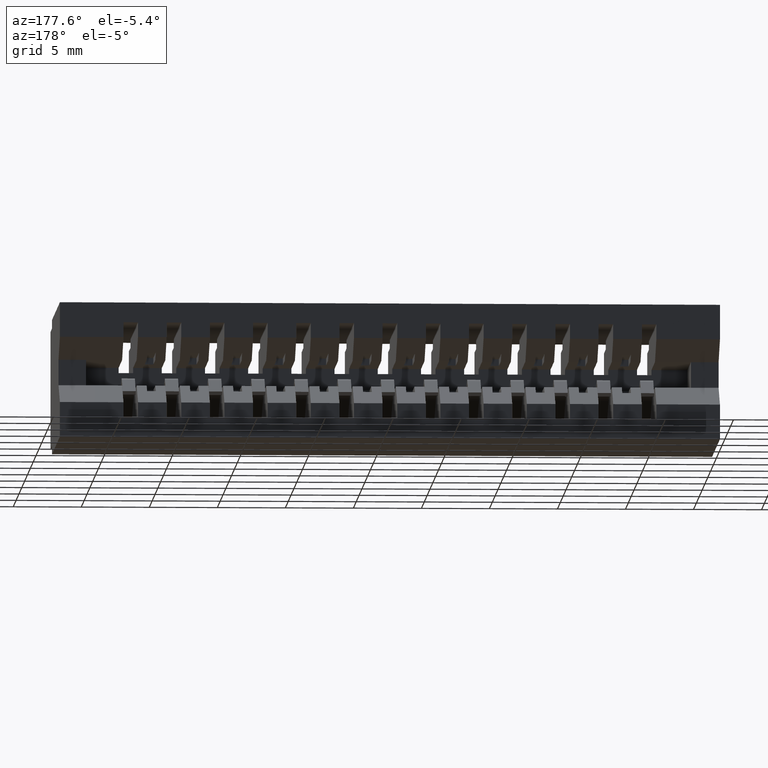
[diagram: clean part render]
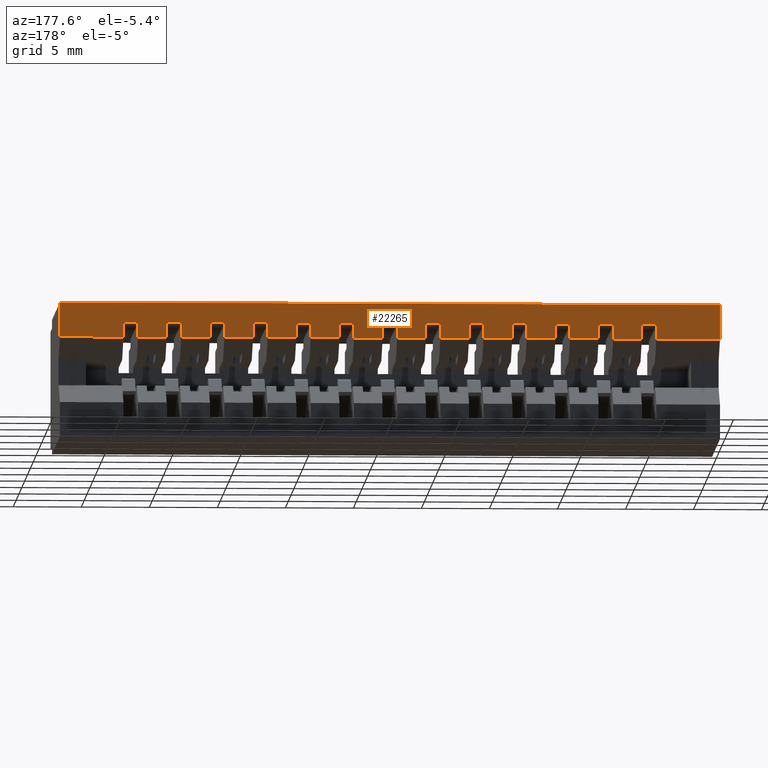
[diagram: same view with one face highlighted and labeled with its STEP entity id]
A machine part, auxiliary view. The second image highlights one B-rep face of the part: STEP entity #22265.
In plain terms, the highlighted planar face has unit normal (0, -1, 0).
Its self-contained STEP definition (entity closure, byte-faithful):
#42 = EDGE_CURVE ( 'NONE', #17692, #766, #1530, .T. ) ;
#119 = EDGE_CURVE ( 'NONE', #4855, #153, #20437, .T. ) ;
#147 = CARTESIAN_POINT ( 'NONE',  ( 0.4759999999999997011, 0.6449999999999999067, -0.1002500000000000058 ) ) ;
#153 = VERTEX_POINT ( 'NONE', #14549 ) ;
#154 = VECTOR ( 'NONE', #18979, 39.37007874015748143 ) ;
#273 = VECTOR ( 'NONE', #20626, 39.37007874015748143 ) ;
#358 = CARTESIAN_POINT ( 'NONE',  ( 1.225999999999999757, 0.6449999999999999067, -0.05750000000000000944 ) ) ;
#390 = VERTEX_POINT ( 'NONE', #15723 ) ;
#410 = DIRECTION ( 'NONE',  ( 2.385081683068867604E-16, 0.0000000000000000000, 1.000000000000000000 ) ) ;
#532 = ORIENTED_EDGE ( 'NONE', *, *, #119, .T. ) ;
#565 = CARTESIAN_POINT ( 'NONE',  ( 1.350999999999999979, 0.6449999999999999067, -5.373951300518784932E-17 ) ) ;
#578 = EDGE_CURVE ( 'NONE', #19260, #7707, #11381, .T. ) ;
#581 = CARTESIAN_POINT ( 'NONE',  ( 1.183999999999999719, 0.6449999999999999067, -0.1002500000000000474 ) ) ;
#665 = VECTOR ( 'NONE', #19133, 39.37007874015748143 ) ;
#676 = VERTEX_POINT ( 'NONE', #20646 ) ;
#704 = CARTESIAN_POINT ( 'NONE',  ( 1.475999999999999757, 0.6449999999999999067, -0.05750000000000000944 ) ) ;
#733 = LINE ( 'NONE', #2511, #665 ) ;
#752 = DIRECTION ( 'NONE',  ( 2.385081683068867604E-16, 0.0000000000000000000, 1.000000000000000000 ) ) ;
#766 = VERTEX_POINT ( 'NONE', #8719 ) ;
#773 = VECTOR ( 'NONE', #4719, 39.37007874015748143 ) ;
#774 = ORIENTED_EDGE ( 'NONE', *, *, #6073, .F. ) ;
#954 = VERTEX_POINT ( 'NONE', #5076 ) ;
#1006 = ORIENTED_EDGE ( 'NONE', *, *, #23655, .F. ) ;
#1024 = ORIENTED_EDGE ( 'NONE', *, *, #1375, .T. ) ;
#1062 = CARTESIAN_POINT ( 'NONE',  ( 0.8509999999999997566, 0.6449999999999999067, -0.05750000000000000944 ) ) ;
#1106 = ORIENTED_EDGE ( 'NONE', *, *, #3270, .T. ) ;
#1155 = CARTESIAN_POINT ( 'NONE',  ( 1.308999999999999941, 0.6449999999999999067, -0.1002499999999999780 ) ) ;
#1226 = ORIENTED_EDGE ( 'NONE', *, *, #18616, .F. ) ;
#1275 = CARTESIAN_POINT ( 'NONE',  ( 1.909999999999999920, 0.6449999999999999067, -0.1002500000000000058 ) ) ;
#1309 = DIRECTION ( 'NONE',  ( 2.385081683068867604E-16, 0.0000000000000000000, 1.000000000000000000 ) ) ;
#1350 = DIRECTION ( 'NONE',  ( 2.385081683068867604E-16, 0.0000000000000000000, 1.000000000000000000 ) ) ;
#1375 = EDGE_CURVE ( 'NONE', #19567, #13268, #9706, .T. ) ;
#1399 = CARTESIAN_POINT ( 'NONE',  ( 0.9759999999999996456, 0.6449999999999999067, -0.1002500000000000335 ) ) ;
#1436 = LINE ( 'NONE', #8796, #14989 ) ;
#1459 = CARTESIAN_POINT ( 'NONE',  ( 1.909999999999999920, 0.6449999999999999067, -0.1002500000000000058 ) ) ;
#1511 = CARTESIAN_POINT ( 'NONE',  ( 0.6009999999999996456, 0.6449999999999999067, -5.373951300518784932E-17 ) ) ;
#1530 = LINE ( 'NONE', #16226, #18340 ) ;
#1542 = VERTEX_POINT ( 'NONE', #11619 ) ;
#1548 = LINE ( 'NONE', #12643, #7767 ) ;
#1639 = EDGE_CURVE ( 'NONE', #23577, #6095, #7025, .T. ) ;
#1668 = LINE ( 'NONE', #15889, #22273 ) ;
#1690 = VERTEX_POINT ( 'NONE', #21582 ) ;
#1809 = VECTOR ( 'NONE', #11284, 39.37007874015748143 ) ;
#1844 = CARTESIAN_POINT ( 'NONE',  ( 0.3089999999999997193, 0.6449999999999999067, -0.05750000000000000250 ) ) ;
#1850 = LINE ( 'NONE', #2088, #23221 ) ;
#1869 = ORIENTED_EDGE ( 'NONE', *, *, #42, .F. ) ;
#1875 = CARTESIAN_POINT ( 'NONE',  ( 1.100999999999999757, 0.6449999999999999067, -0.05750000000000000944 ) ) ;
#1878 = CARTESIAN_POINT ( 'NONE',  ( 1.350999999999999979, 0.6449999999999999067, -0.1002499999999999780 ) ) ;
#1879 = EDGE_CURVE ( 'NONE', #13268, #17820, #16540, .T. ) ;
#1888 = CARTESIAN_POINT ( 'NONE',  ( 1.725999999999999535, 0.6449999999999999067, -5.373951300518784932E-17 ) ) ;
#2003 = VERTEX_POINT ( 'NONE', #4602 ) ;
#2012 = VECTOR ( 'NONE', #3302, 39.37007874015748143 ) ;
#2088 = CARTESIAN_POINT ( 'NONE',  ( 1.683999999999999497, 0.6449999999999999067, -0.05750000000000000250 ) ) ;
#2138 = VERTEX_POINT ( 'NONE', #6640 ) ;
#2182 = CARTESIAN_POINT ( 'NONE',  ( 0.3089999999999997193, 0.6449999999999999067, -4.404883600063556642E-17 ) ) ;
#2215 = ORIENTED_EDGE ( 'NONE', *, *, #8195, .F. ) ;
#2257 = LINE ( 'NONE', #15032, #18636 ) ;
#2420 = CARTESIAN_POINT ( 'NONE',  ( 0.6839999999999997193, 0.6449999999999999067, -0.05750000000000000250 ) ) ;
#2440 = ORIENTED_EDGE ( 'NONE', *, *, #7875, .F. ) ;
#2511 = CARTESIAN_POINT ( 'NONE',  ( 0.3089999999999997193, 0.6449999999999999067, -0.05750000000000000250 ) ) ;
#2522 = LINE ( 'NONE', #17223, #23100 ) ;
#2552 = VERTEX_POINT ( 'NONE', #15252 ) ;
#2715 = CARTESIAN_POINT ( 'NONE',  ( 0.5589999999999997193, 0.6449999999999999067, -4.404883600063556642E-17 ) ) ;
#2755 = LINE ( 'NONE', #13619, #16637 ) ;
#2768 = CARTESIAN_POINT ( 'NONE',  ( 1.909999999999999920, 0.6449999999999999067, -0.1002500000000000058 ) ) ;
#2821 = EDGE_CURVE ( 'NONE', #1542, #17773, #23757, .T. ) ;
#2906 = DIRECTION ( 'NONE',  ( 2.385081683068867604E-16, 0.0000000000000000000, 1.000000000000000000 ) ) ;
#2959 = EDGE_CURVE ( 'NONE', #17773, #153, #1850, .T. ) ;
#2967 = CARTESIAN_POINT ( 'NONE',  ( 1.909999999999999920, 0.6449999999999999067, -0.1002500000000000058 ) ) ;
#2974 = EDGE_CURVE ( 'NONE', #4407, #7576, #9454, .T. ) ;
#2979 = VECTOR ( 'NONE', #23072, 39.37007874015748143 ) ;
#2986 = CARTESIAN_POINT ( 'NONE',  ( 0.1839999999999996916, 0.6449999999999999067, -0.05750000000000000250 ) ) ;
#3074 = LINE ( 'NONE', #6814, #9443 ) ;
#3118 = EDGE_CURVE ( 'NONE', #676, #9231, #6292, .T. ) ;
#3125 = ORIENTED_EDGE ( 'NONE', *, *, #11744, .F. ) ;
#3249 = VECTOR ( 'NONE', #17006, 39.37007874015748143 ) ;
#3265 = LINE ( 'NONE', #10610, #12809 ) ;
#3268 = LINE ( 'NONE', #4843, #4658 ) ;
#3270 = EDGE_CURVE ( 'NONE', #390, #12406, #21556, .T. ) ;
#3302 = DIRECTION ( 'NONE',  ( -1.000000000000000000, 0.0000000000000000000, 0.0000000000000000000 ) ) ;
#3437 = ORIENTED_EDGE ( 'NONE', *, *, #10266, .F. ) ;
#3458 = CARTESIAN_POINT ( 'NONE',  ( 0.7259999999999997566, 0.6449999999999999067, -0.1002500000000000335 ) ) ;
#3495 = DIRECTION ( 'NONE',  ( 2.385081683068867604E-16, 0.0000000000000000000, 1.000000000000000000 ) ) ;
#3518 = DIRECTION ( 'NONE',  ( 2.385081683068867604E-16, 0.0000000000000000000, 1.000000000000000000 ) ) ;
#3568 = EDGE_CURVE ( 'NONE', #2003, #16978, #2755, .T. ) ;
#3569 = VECTOR ( 'NONE', #14121, 39.37007874015748143 ) ;
#3602 = CARTESIAN_POINT ( 'NONE',  ( 1.100999999999999757, 0.6449999999999999067, -0.1002500000000000474 ) ) ;
#3616 = VECTOR ( 'NONE', #4409, 39.37007874015748143 ) ;
#3632 = CARTESIAN_POINT ( 'NONE',  ( 1.909999999999999920, 0.6449999999999999067, 0.0000000000000000000 ) ) ;
#3678 = CARTESIAN_POINT ( 'NONE',  ( 0.6839999999999997193, 0.6449999999999999067, -4.404883600063556642E-17 ) ) ;
#3845 = ORIENTED_EDGE ( 'NONE', *, *, #23397, .F. ) ;
#3947 = LINE ( 'NONE', #11298, #14991 ) ;
#3980 = ORIENTED_EDGE ( 'NONE', *, *, #11486, .F. ) ;
#3997 = LINE ( 'NONE', #11348, #3249 ) ;
#4040 = EDGE_CURVE ( 'NONE', #22186, #4908, #6937, .T. ) ;
#4049 = VERTEX_POINT ( 'NONE', #10321 ) ;
#4066 = VERTEX_POINT ( 'NONE', #17542 ) ;
#4100 = DIRECTION ( 'NONE',  ( 2.385081683068867604E-16, 0.0000000000000000000, 1.000000000000000000 ) ) ;
#4130 = LINE ( 'NONE', #18572, #273 ) ;
#4156 = ORIENTED_EDGE ( 'NONE', *, *, #4040, .T. ) ;
#4275 = ORIENTED_EDGE ( 'NONE', *, *, #18421, .T. ) ;
#4404 = VECTOR ( 'NONE', #6516, 39.37007874015748143 ) ;
#4407 = VERTEX_POINT ( 'NONE', #14237 ) ;
#4409 = DIRECTION ( 'NONE',  ( 2.385081683068867604E-16, 0.0000000000000000000, 1.000000000000000000 ) ) ;
#4511 = EDGE_CURVE ( 'NONE', #7574, #23343, #20128, .T. ) ;
#4602 = CARTESIAN_POINT ( 'NONE',  ( 0.4339999999999996083, 0.6449999999999999067, -0.1002499999999999919 ) ) ;
#4658 = VECTOR ( 'NONE', #6769, 39.37007874015748143 ) ;
#4719 = DIRECTION ( 'NONE',  ( -1.000000000000000000, 0.0000000000000000000, 0.0000000000000000000 ) ) ;
#4785 = VERTEX_POINT ( 'NONE', #10705 ) ;
#4818 = ORIENTED_EDGE ( 'NONE', *, *, #19511, .T. ) ;
#4843 = CARTESIAN_POINT ( 'NONE',  ( 1.600999999999999757, 0.6449999999999999067, -5.373951300518784932E-17 ) ) ;
#4847 = EDGE_CURVE ( 'NONE', #6324, #17670, #1668, .T. ) ;
#4855 = VERTEX_POINT ( 'NONE', #10824 ) ;
#4908 = VERTEX_POINT ( 'NONE', #17922 ) ;
#4910 = EDGE_CURVE ( 'NONE', #16978, #4049, #1436, .T. ) ;
#4987 = ORIENTED_EDGE ( 'NONE', *, *, #2974, .F. ) ;
#5031 = VERTEX_POINT ( 'NONE', #7705 ) ;
#5069 = VERTEX_POINT ( 'NONE', #14175 ) ;
#5076 = CARTESIAN_POINT ( 'NONE',  ( 0.7259999999999997566, 0.6449999999999999067, -0.05750000000000000944 ) ) ;
#5111 = VERTEX_POINT ( 'NONE', #19689 ) ;
#5339 = VERTEX_POINT ( 'NONE', #5444 ) ;
#5347 = CARTESIAN_POINT ( 'NONE',  ( 1.058999999999999719, 0.6449999999999999067, -0.05750000000000000250 ) ) ;
#5401 = CARTESIAN_POINT ( 'NONE',  ( 1.683999999999999497, 0.6449999999999999067, -0.05750000000000000250 ) ) ;
#5444 = CARTESIAN_POINT ( 'NONE',  ( 1.475999999999999757, 0.6449999999999999067, -0.1002499999999999780 ) ) ;
#5519 = CARTESIAN_POINT ( 'NONE',  ( 0.2259999999999996734, 0.6449999999999999067, -0.05750000000000000944 ) ) ;
#5557 = VECTOR ( 'NONE', #20283, 39.37007874015748143 ) ;
#5784 = LINE ( 'NONE', #14587, #6770 ) ;
#5948 = EDGE_CURVE ( 'NONE', #16878, #6324, #22504, .T. ) ;
#6073 = EDGE_CURVE ( 'NONE', #16426, #7707, #14275, .T. ) ;
#6095 = VERTEX_POINT ( 'NONE', #23283 ) ;
#6163 = ORIENTED_EDGE ( 'NONE', *, *, #23034, .F. ) ;
#6164 = CARTESIAN_POINT ( 'NONE',  ( 0.4339999999999996638, 0.6449999999999999067, -0.05750000000000000250 ) ) ;
#6260 = DIRECTION ( 'NONE',  ( -1.000000000000000000, 0.0000000000000000000, 0.0000000000000000000 ) ) ;
#6292 = LINE ( 'NONE', #9921, #8511 ) ;
#6294 = CARTESIAN_POINT ( 'NONE',  ( 0.4339999999999996638, 0.6449999999999999067, -0.05750000000000000250 ) ) ;
#6324 = VERTEX_POINT ( 'NONE', #21338 ) ;
#6345 = VECTOR ( 'NONE', #18946, 39.37007874015748143 ) ;
#6348 = VECTOR ( 'NONE', #1309, 39.37007874015748143 ) ;
#6516 = DIRECTION ( 'NONE',  ( 1.000000000000000000, -0.0000000000000000000, -2.307304048702925122E-16 ) ) ;
#6640 = CARTESIAN_POINT ( 'NONE',  ( 0.5589999999999997193, 0.6449999999999999067, -0.05750000000000000250 ) ) ;
#6714 = CARTESIAN_POINT ( 'NONE',  ( 1.909999999999999920, 0.6449999999999999067, -0.1002500000000000058 ) ) ;
#6769 = DIRECTION ( 'NONE',  ( 2.385081683068867604E-16, 0.0000000000000000000, 1.000000000000000000 ) ) ;
#6770 = VECTOR ( 'NONE', #4100, 39.37007874015748143 ) ;
#6781 = DIRECTION ( 'NONE',  ( 0.0000000000000000000, -0.0000000000000000000, -1.000000000000000000 ) ) ;
#6790 = ORIENTED_EDGE ( 'NONE', *, *, #22059, .F. ) ;
#6814 = CARTESIAN_POINT ( 'NONE',  ( 0.1839999999999996916, 0.6449999999999999067, -0.05750000000000000250 ) ) ;
#6926 = CARTESIAN_POINT ( 'NONE',  ( 1.909999999999999920, 0.6449999999999999067, -0.1002500000000000058 ) ) ;
#6928 = EDGE_CURVE ( 'NONE', #12276, #18787, #12538, .T. ) ;
#6937 = LINE ( 'NONE', #2967, #7300 ) ;
#7025 = LINE ( 'NONE', #21467, #13346 ) ;
#7032 = CARTESIAN_POINT ( 'NONE',  ( 1.683999999999999497, 0.6449999999999999067, -4.404883600063556642E-17 ) ) ;
#7041 = EDGE_CURVE ( 'NONE', #5339, #13214, #5784, .T. ) ;
#7079 = DIRECTION ( 'NONE',  ( 2.385081683068867604E-16, 0.0000000000000000000, 1.000000000000000000 ) ) ;
#7145 = VECTOR ( 'NONE', #11587, 39.37007874015748143 ) ;
#7166 = CARTESIAN_POINT ( 'NONE',  ( 1.909999999999999920, 0.6449999999999999067, -0.1002500000000000058 ) ) ;
#7168 = ORIENTED_EDGE ( 'NONE', *, *, #11475, .F. ) ;
#7285 = DIRECTION ( 'NONE',  ( 2.385081683068867604E-16, 0.0000000000000000000, 1.000000000000000000 ) ) ;
#7300 = VECTOR ( 'NONE', #16215, 39.37007874015748143 ) ;
#7472 = ORIENTED_EDGE ( 'NONE', *, *, #6928, .F. ) ;
#7574 = VERTEX_POINT ( 'NONE', #18867 ) ;
#7576 = VERTEX_POINT ( 'NONE', #13580 ) ;
#7653 = ORIENTED_EDGE ( 'NONE', *, *, #18430, .F. ) ;
#7705 = CARTESIAN_POINT ( 'NONE',  ( 0.4759999999999996456, 0.6449999999999999067, -0.05750000000000000944 ) ) ;
#7707 = VERTEX_POINT ( 'NONE', #1062 ) ;
#7730 = EDGE_CURVE ( 'NONE', #4908, #8747, #17999, .T. ) ;
#7748 = LINE ( 'NONE', #13292, #7145 ) ;
#7767 = VECTOR ( 'NONE', #9039, 39.37007874015748143 ) ;
#7792 = VECTOR ( 'NONE', #16399, 39.37007874015748143 ) ;
#7875 = EDGE_CURVE ( 'NONE', #18142, #14725, #4130, .T. ) ;
#7889 = VECTOR ( 'NONE', #14942, 39.37007874015748143 ) ;
#7914 = LINE ( 'NONE', #13461, #3616 ) ;
#7969 = CARTESIAN_POINT ( 'NONE',  ( 0.9339999999999996083, 0.6449999999999999067, -4.404883600063556642E-17 ) ) ;
#8028 = LINE ( 'NONE', #13573, #154 ) ;
#8101 = CARTESIAN_POINT ( 'NONE',  ( 0.8089999999999997193, 0.6449999999999999067, -0.05750000000000000250 ) ) ;
#8195 = EDGE_CURVE ( 'NONE', #13755, #4049, #733, .T. ) ;
#8268 = DIRECTION ( 'NONE',  ( 2.385081683068867604E-16, 0.0000000000000000000, 1.000000000000000000 ) ) ;
#8511 = VECTOR ( 'NONE', #15334, 39.37007874015748143 ) ;
#8719 = CARTESIAN_POINT ( 'NONE',  ( 1.433999999999999719, 0.6449999999999999067, -0.05750000000000000250 ) ) ;
#8747 = VERTEX_POINT ( 'NONE', #23530 ) ;
#8775 = ORIENTED_EDGE ( 'NONE', *, *, #16076, .F. ) ;
#8796 = CARTESIAN_POINT ( 'NONE',  ( 0.3509999999999997011, 0.6449999999999999067, -5.373951300518784932E-17 ) ) ;
#8827 = ORIENTED_EDGE ( 'NONE', *, *, #16496, .T. ) ;
#8841 = CARTESIAN_POINT ( 'NONE',  ( 0.9339999999999996083, 0.6449999999999999067, -0.05750000000000000250 ) ) ;
#8875 = DIRECTION ( 'NONE',  ( 2.385081683068867604E-16, 0.0000000000000000000, 1.000000000000000000 ) ) ;
#8979 = EDGE_CURVE ( 'NONE', #15899, #23577, #9980, .T. ) ;
#9000 = ORIENTED_EDGE ( 'NONE', *, *, #1879, .T. ) ;
#9039 = DIRECTION ( 'NONE',  ( 2.385081683068867604E-16, 0.0000000000000000000, 1.000000000000000000 ) ) ;
#9045 = ORIENTED_EDGE ( 'NONE', *, *, #12356, .T. ) ;
#9100 = VECTOR ( 'NONE', #3495, 39.37007874015748143 ) ;
#9146 = ORIENTED_EDGE ( 'NONE', *, *, #22784, .F. ) ;
#9205 = EDGE_CURVE ( 'NONE', #18787, #17820, #19951, .T. ) ;
#9231 = VERTEX_POINT ( 'NONE', #3458 ) ;
#9352 = ORIENTED_EDGE ( 'NONE', *, *, #21100, .T. ) ;
#9356 = LINE ( 'NONE', #12724, #18797 ) ;
#9358 = CARTESIAN_POINT ( 'NONE',  ( 1.909999999999999920, 0.6449999999999999067, -0.1002500000000000058 ) ) ;
#9443 = VECTOR ( 'NONE', #21373, 39.37007874015748143 ) ;
#9454 = LINE ( 'NONE', #11008, #5557 ) ;
#9462 = VECTOR ( 'NONE', #17964, 39.37007874015748143 ) ;
#9706 = LINE ( 'NONE', #9358, #19435 ) ;
#9798 = CARTESIAN_POINT ( 'NONE',  ( 0.3509999999999995901, 0.6449999999999999067, -0.1002499999999999919 ) ) ;
#9921 = CARTESIAN_POINT ( 'NONE',  ( 1.909999999999999920, 0.6449999999999999067, -0.1002500000000000058 ) ) ;
#9930 = EDGE_CURVE ( 'NONE', #390, #18142, #12200, .T. ) ;
#9980 = LINE ( 'NONE', #6714, #2979 ) ;
#9982 = VECTOR ( 'NONE', #10981, 39.37007874015748143 ) ;
#10078 = VECTOR ( 'NONE', #22584, 39.37007874015748143 ) ;
#10084 = CARTESIAN_POINT ( 'NONE',  ( 0.8509999999999997566, 0.6449999999999999067, -0.1002500000000000335 ) ) ;
#10194 = ORIENTED_EDGE ( 'NONE', *, *, #7041, .T. ) ;
#10266 = EDGE_CURVE ( 'NONE', #5111, #22234, #20727, .T. ) ;
#10286 = EDGE_CURVE ( 'NONE', #4066, #5339, #15317, .T. ) ;
#10321 = CARTESIAN_POINT ( 'NONE',  ( 0.3509999999999997011, 0.6449999999999999067, -0.05750000000000000944 ) ) ;
#10385 = DIRECTION ( 'NONE',  ( 0.0000000000000000000, -1.000000000000000000, 0.0000000000000000000 ) ) ;
#10469 = CARTESIAN_POINT ( 'NONE',  ( 1.909999999999999920, 0.6449999999999999067, -0.1002500000000000058 ) ) ;
#10610 = CARTESIAN_POINT ( 'NONE',  ( 1.308999999999999941, 0.6449999999999999067, -4.404883600063556642E-17 ) ) ;
#10705 = CARTESIAN_POINT ( 'NONE',  ( 1.600999999999999757, 0.6449999999999999067, -0.1002499999999999919 ) ) ;
#10810 = CARTESIAN_POINT ( 'NONE',  ( 1.350999999999999979, 0.6449999999999999067, -0.05750000000000000944 ) ) ;
#10824 = CARTESIAN_POINT ( 'NONE',  ( 1.725999999999999535, 0.6449999999999999067, -0.1002499999999999919 ) ) ;
#10981 = DIRECTION ( 'NONE',  ( 0.0000000000000000000, 0.0000000000000000000, -1.000000000000000000 ) ) ;
#11008 = CARTESIAN_POINT ( 'NONE',  ( 1.558999999999999719, 0.6449999999999999067, -0.05750000000000000250 ) ) ;
#11092 = ORIENTED_EDGE ( 'NONE', *, *, #7730, .T. ) ;
#11152 = ORIENTED_EDGE ( 'NONE', *, *, #8979, .T. ) ;
#11284 = DIRECTION ( 'NONE',  ( 2.385081683068867604E-16, 0.0000000000000000000, 1.000000000000000000 ) ) ;
#11298 = CARTESIAN_POINT ( 'NONE',  ( 0.8089999999999997193, 0.6449999999999999067, -4.404883600063556642E-17 ) ) ;
#11314 = VECTOR ( 'NONE', #18358, 39.37007874015748143 ) ;
#11348 = CARTESIAN_POINT ( 'NONE',  ( 0.5589999999999997193, 0.6449999999999999067, -0.05750000000000000250 ) ) ;
#11373 = ORIENTED_EDGE ( 'NONE', *, *, #18420, .T. ) ;
#11381 = LINE ( 'NONE', #18832, #6345 ) ;
#11427 = EDGE_CURVE ( 'NONE', #2138, #8747, #3997, .T. ) ;
#11475 = EDGE_CURVE ( 'NONE', #5069, #954, #19392, .T. ) ;
#11486 = EDGE_CURVE ( 'NONE', #16349, #5031, #15321, .T. ) ;
#11587 = DIRECTION ( 'NONE',  ( 1.000000000000000000, -0.0000000000000000000, -2.307304048702925122E-16 ) ) ;
#11619 = CARTESIAN_POINT ( 'NONE',  ( 1.683999999999999497, 0.6449999999999999067, -0.1002499999999999919 ) ) ;
#11637 = ORIENTED_EDGE ( 'NONE', *, *, #9930, .F. ) ;
#11730 = ORIENTED_EDGE ( 'NONE', *, *, #3568, .T. ) ;
#11744 = EDGE_CURVE ( 'NONE', #766, #13214, #20111, .T. ) ;
#11881 = LINE ( 'NONE', #2715, #16351 ) ;
#12047 = ORIENTED_EDGE ( 'NONE', *, *, #5948, .T. ) ;
#12054 = EDGE_CURVE ( 'NONE', #9231, #954, #14076, .T. ) ;
#12087 = VERTEX_POINT ( 'NONE', #2986 ) ;
#12200 = LINE ( 'NONE', #21332, #13597 ) ;
#12276 = VERTEX_POINT ( 'NONE', #581 ) ;
#12356 = EDGE_CURVE ( 'NONE', #2552, #18557, #23290, .T. ) ;
#12406 = VERTEX_POINT ( 'NONE', #1399 ) ;
#12438 = CARTESIAN_POINT ( 'NONE',  ( 0.0000000000000000000, 0.6449999999999999067, -0.3900000000000000133 ) ) ;
#12465 = DIRECTION ( 'NONE',  ( 1.000000000000000000, -0.0000000000000000000, -2.307304048702925122E-16 ) ) ;
#12486 = EDGE_CURVE ( 'NONE', #6095, #7574, #16327, .T. ) ;
#12538 = LINE ( 'NONE', #14224, #9100 ) ;
#12589 = ORIENTED_EDGE ( 'NONE', *, *, #4910, .T. ) ;
#12643 = CARTESIAN_POINT ( 'NONE',  ( 1.100999999999999757, 0.6449999999999999067, -5.373951300518784932E-17 ) ) ;
#12646 = DIRECTION ( 'NONE',  ( 2.385081683068867604E-16, 0.0000000000000000000, 1.000000000000000000 ) ) ;
#12724 = CARTESIAN_POINT ( 'NONE',  ( 0.1839999999999996916, 0.6449999999999999067, -4.404883600063556642E-17 ) ) ;
#12809 = VECTOR ( 'NONE', #2906, 39.37007874015748143 ) ;
#12834 = VERTEX_POINT ( 'NONE', #10810 ) ;
#12964 = ORIENTED_EDGE ( 'NONE', *, *, #4847, .T. ) ;
#12997 = ORIENTED_EDGE ( 'NONE', *, *, #578, .T. ) ;
#13057 = CARTESIAN_POINT ( 'NONE',  ( 0.0000000000000000000, 0.6449999999999999067, -0.1002500000000000058 ) ) ;
#13111 = DIRECTION ( 'NONE',  ( 2.385081683068867604E-16, 0.0000000000000000000, 1.000000000000000000 ) ) ;
#13214 = VERTEX_POINT ( 'NONE', #704 ) ;
#13216 = VECTOR ( 'NONE', #17929, 39.37007874015748143 ) ;
#13268 = VERTEX_POINT ( 'NONE', #23526 ) ;
#13292 = CARTESIAN_POINT ( 'NONE',  ( 0.9339999999999996083, 0.6449999999999999067, -0.05750000000000000250 ) ) ;
#13346 = VECTOR ( 'NONE', #23622, 39.37007874015748143 ) ;
#13452 = EDGE_CURVE ( 'NONE', #15899, #12087, #9356, .T. ) ;
#13461 = CARTESIAN_POINT ( 'NONE',  ( 0.9759999999999996456, 0.6449999999999999067, -5.373951300518784932E-17 ) ) ;
#13500 = DIRECTION ( 'NONE',  ( 1.000000000000000000, -0.0000000000000000000, -2.307304048702925122E-16 ) ) ;
#13573 = CARTESIAN_POINT ( 'NONE',  ( 1.909999999999999920, 0.6449999999999999067, -0.1002500000000000058 ) ) ;
#13580 = CARTESIAN_POINT ( 'NONE',  ( 1.600999999999999757, 0.6449999999999999067, -0.05750000000000000944 ) ) ;
#13597 = VECTOR ( 'NONE', #3518, 39.37007874015748143 ) ;
#13619 = CARTESIAN_POINT ( 'NONE',  ( 1.909999999999999920, 0.6449999999999999067, -0.1002500000000000058 ) ) ;
#13635 = DIRECTION ( 'NONE',  ( 1.000000000000000000, -0.0000000000000000000, -2.307304048702925122E-16 ) ) ;
#13669 = ORIENTED_EDGE ( 'NONE', *, *, #21788, .T. ) ;
#13755 = VERTEX_POINT ( 'NONE', #1844 ) ;
#13928 = DIRECTION ( 'NONE',  ( -1.000000000000000000, 0.0000000000000000000, 0.0000000000000000000 ) ) ;
#14076 = LINE ( 'NONE', #14429, #6348 ) ;
#14121 = DIRECTION ( 'NONE',  ( -1.000000000000000000, 0.0000000000000000000, 0.0000000000000000000 ) ) ;
#14145 = CARTESIAN_POINT ( 'NONE',  ( 0.3089999999999996083, 0.6449999999999999067, -0.1002499999999999919 ) ) ;
#14152 = VECTOR ( 'NONE', #21872, 39.37007874015748143 ) ;
#14175 = CARTESIAN_POINT ( 'NONE',  ( 0.6839999999999997193, 0.6449999999999999067, -0.05750000000000000250 ) ) ;
#14224 = CARTESIAN_POINT ( 'NONE',  ( 1.183999999999999719, 0.6449999999999999067, -4.404883600063556642E-17 ) ) ;
#14229 = ORIENTED_EDGE ( 'NONE', *, *, #18923, .T. ) ;
#14237 = CARTESIAN_POINT ( 'NONE',  ( 1.558999999999999719, 0.6449999999999999067, -0.05750000000000000250 ) ) ;
#14249 = PLANE ( 'NONE',  #15537 ) ;
#14275 = LINE ( 'NONE', #19802, #21430 ) ;
#14402 = DIRECTION ( 'NONE',  ( 1.000000000000000000, 0.0000000000000000000, 0.0000000000000000000 ) ) ;
#14429 = CARTESIAN_POINT ( 'NONE',  ( 0.7259999999999997566, 0.6449999999999999067, -5.373951300518784932E-17 ) ) ;
#14549 = CARTESIAN_POINT ( 'NONE',  ( 1.725999999999999535, 0.6449999999999999067, -0.05750000000000000944 ) ) ;
#14585 = CARTESIAN_POINT ( 'NONE',  ( 1.433999999999999719, 0.6449999999999999067, -0.05750000000000000250 ) ) ;
#14587 = CARTESIAN_POINT ( 'NONE',  ( 1.475999999999999757, 0.6449999999999999067, -5.373951300518784932E-17 ) ) ;
#14725 = VERTEX_POINT ( 'NONE', #1875 ) ;
#14942 = DIRECTION ( 'NONE',  ( 1.000000000000000000, -0.0000000000000000000, -2.307304048702925122E-16 ) ) ;
#14989 = VECTOR ( 'NONE', #16131, 39.37007874015748143 ) ;
#14991 = VECTOR ( 'NONE', #19317, 39.37007874015748143 ) ;
#15019 = LINE ( 'NONE', #565, #10078 ) ;
#15032 = CARTESIAN_POINT ( 'NONE',  ( 1.558999999999999719, 0.6449999999999999067, -4.404883600063556642E-17 ) ) ;
#15223 = DIRECTION ( 'NONE',  ( 1.000000000000000000, -0.0000000000000000000, -2.307304048702925122E-16 ) ) ;
#15234 = VECTOR ( 'NONE', #14402, 39.37007874015748143 ) ;
#15252 = CARTESIAN_POINT ( 'NONE',  ( 0.5589999999999997193, 0.6449999999999999067, -0.1002500000000000058 ) ) ;
#15311 = ORIENTED_EDGE ( 'NONE', *, *, #1639, .T. ) ;
#15317 = LINE ( 'NONE', #2768, #17424 ) ;
#15321 = LINE ( 'NONE', #6164, #4404 ) ;
#15334 = DIRECTION ( 'NONE',  ( -1.000000000000000000, 0.0000000000000000000, 0.0000000000000000000 ) ) ;
#15537 = AXIS2_PLACEMENT_3D ( 'NONE', #12438, #10385, #6781 ) ;
#15562 = CARTESIAN_POINT ( 'NONE',  ( 1.909999999999999920, 0.6449999999999999067, -0.1002500000000000058 ) ) ;
#15667 = DIRECTION ( 'NONE',  ( -1.000000000000000000, 0.0000000000000000000, 0.0000000000000000000 ) ) ;
#15684 = LINE ( 'NONE', #19633, #3569 ) ;
#15687 = LINE ( 'NONE', #15562, #773 ) ;
#15723 = CARTESIAN_POINT ( 'NONE',  ( 1.058999999999999719, 0.6449999999999999067, -0.1002500000000000474 ) ) ;
#15848 = ORIENTED_EDGE ( 'NONE', *, *, #4511, .T. ) ;
#15889 = CARTESIAN_POINT ( 'NONE',  ( 0.2259999999999996734, 0.6449999999999999067, -5.373951300518784932E-17 ) ) ;
#15899 = VERTEX_POINT ( 'NONE', #18276 ) ;
#15983 = CARTESIAN_POINT ( 'NONE',  ( 1.183999999999999719, 0.6449999999999999067, -0.05750000000000000250 ) ) ;
#16060 = ORIENTED_EDGE ( 'NONE', *, *, #13452, .F. ) ;
#16076 = EDGE_CURVE ( 'NONE', #676, #16426, #3947, .T. ) ;
#16131 = DIRECTION ( 'NONE',  ( 2.385081683068867604E-16, 0.0000000000000000000, 1.000000000000000000 ) ) ;
#16156 = LINE ( 'NONE', #23473, #20485 ) ;
#16215 = DIRECTION ( 'NONE',  ( -1.000000000000000000, 0.0000000000000000000, 0.0000000000000000000 ) ) ;
#16226 = CARTESIAN_POINT ( 'NONE',  ( 1.433999999999999719, 0.6449999999999999067, -4.404883600063556642E-17 ) ) ;
#16327 = LINE ( 'NONE', #18363, #15234 ) ;
#16349 = VERTEX_POINT ( 'NONE', #6294 ) ;
#16350 = EDGE_CURVE ( 'NONE', #1542, #4785, #15687, .T. ) ;
#16351 = VECTOR ( 'NONE', #8268, 39.37007874015748143 ) ;
#16378 = LINE ( 'NONE', #10469, #13216 ) ;
#16399 = DIRECTION ( 'NONE',  ( -1.000000000000000000, 0.0000000000000000000, 0.0000000000000000000 ) ) ;
#16426 = VERTEX_POINT ( 'NONE', #8101 ) ;
#16448 = DIRECTION ( 'NONE',  ( 2.385081683068867604E-16, 0.0000000000000000000, 1.000000000000000000 ) ) ;
#16496 = EDGE_CURVE ( 'NONE', #4785, #7576, #3268, .T. ) ;
#16540 = LINE ( 'NONE', #18816, #20073 ) ;
#16637 = VECTOR ( 'NONE', #6260, 39.37007874015748143 ) ;
#16878 = VERTEX_POINT ( 'NONE', #14145 ) ;
#16978 = VERTEX_POINT ( 'NONE', #9798 ) ;
#16979 = CARTESIAN_POINT ( 'NONE',  ( 1.308999999999999941, 0.6449999999999999067, -0.05750000000000000250 ) ) ;
#17006 = DIRECTION ( 'NONE',  ( 1.000000000000000000, -0.0000000000000000000, -2.307304048702925122E-16 ) ) ;
#17034 = CARTESIAN_POINT ( 'NONE',  ( 0.6839999999999997193, 0.6449999999999999067, -0.1002500000000000058 ) ) ;
#17087 = ORIENTED_EDGE ( 'NONE', *, *, #21746, .T. ) ;
#17094 = ORIENTED_EDGE ( 'NONE', *, *, #18658, .F. ) ;
#17176 = ORIENTED_EDGE ( 'NONE', *, *, #9205, .F. ) ;
#17223 = CARTESIAN_POINT ( 'NONE',  ( 1.308999999999999941, 0.6449999999999999067, -0.05750000000000000250 ) ) ;
#17311 = ORIENTED_EDGE ( 'NONE', *, *, #2959, .F. ) ;
#17424 = VECTOR ( 'NONE', #15667, 39.37007874015748143 ) ;
#17426 = ORIENTED_EDGE ( 'NONE', *, *, #10286, .T. ) ;
#17542 = CARTESIAN_POINT ( 'NONE',  ( 1.558999999999999719, 0.6449999999999999067, -0.1002499999999999919 ) ) ;
#17613 = FACE_OUTER_BOUND ( 'NONE', #21516, .T. ) ;
#17670 = VERTEX_POINT ( 'NONE', #5519 ) ;
#17692 = VERTEX_POINT ( 'NONE', #18034 ) ;
#17773 = VERTEX_POINT ( 'NONE', #5401 ) ;
#17820 = VERTEX_POINT ( 'NONE', #358 ) ;
#17922 = CARTESIAN_POINT ( 'NONE',  ( 0.6009999999999996456, 0.6449999999999999067, -0.1002500000000000058 ) ) ;
#17929 = DIRECTION ( 'NONE',  ( -1.000000000000000000, 0.0000000000000000000, 0.0000000000000000000 ) ) ;
#17964 = DIRECTION ( 'NONE',  ( 2.385081683068867604E-16, 0.0000000000000000000, 1.000000000000000000 ) ) ;
#17988 = ORIENTED_EDGE ( 'NONE', *, *, #3118, .T. ) ;
#17999 = LINE ( 'NONE', #1511, #21385 ) ;
#18034 = CARTESIAN_POINT ( 'NONE',  ( 1.433999999999999719, 0.6449999999999999067, -0.1002499999999999780 ) ) ;
#18050 = ORIENTED_EDGE ( 'NONE', *, *, #12486, .T. ) ;
#18114 = ORIENTED_EDGE ( 'NONE', *, *, #2821, .F. ) ;
#18142 = VERTEX_POINT ( 'NONE', #5347 ) ;
#18276 = CARTESIAN_POINT ( 'NONE',  ( 0.1839999999999996916, 0.6449999999999999067, -0.1002499999999999780 ) ) ;
#18340 = VECTOR ( 'NONE', #7079, 39.37007874015748143 ) ;
#18358 = DIRECTION ( 'NONE',  ( 2.385081683068867604E-16, 0.0000000000000000000, 1.000000000000000000 ) ) ;
#18363 = CARTESIAN_POINT ( 'NONE',  ( 0.0000000000000000000, 0.6449999999999999067, 0.0000000000000000000 ) ) ;
#18420 = EDGE_CURVE ( 'NONE', #12276, #18883, #15684, .T. ) ;
#18421 = EDGE_CURVE ( 'NONE', #18557, #5031, #16156, .T. ) ;
#18430 = EDGE_CURVE ( 'NONE', #19567, #22376, #3265, .T. ) ;
#18469 = ORIENTED_EDGE ( 'NONE', *, *, #19672, .T. ) ;
#18557 = VERTEX_POINT ( 'NONE', #147 ) ;
#18572 = CARTESIAN_POINT ( 'NONE',  ( 1.058999999999999719, 0.6449999999999999067, -0.05750000000000000250 ) ) ;
#18616 = EDGE_CURVE ( 'NONE', #22376, #12834, #2522, .T. ) ;
#18636 = VECTOR ( 'NONE', #13111, 39.37007874015748143 ) ;
#18640 = VECTOR ( 'NONE', #13635, 39.37007874015748143 ) ;
#18658 = EDGE_CURVE ( 'NONE', #16878, #13755, #18677, .T. ) ;
#18677 = LINE ( 'NONE', #2182, #18892 ) ;
#18787 = VERTEX_POINT ( 'NONE', #19256 ) ;
#18797 = VECTOR ( 'NONE', #16448, 39.37007874015748143 ) ;
#18816 = CARTESIAN_POINT ( 'NONE',  ( 1.225999999999999757, 0.6449999999999999067, -5.373951300518784932E-17 ) ) ;
#18832 = CARTESIAN_POINT ( 'NONE',  ( 0.8509999999999997566, 0.6449999999999999067, -5.373951300518784932E-17 ) ) ;
#18867 = CARTESIAN_POINT ( 'NONE',  ( 1.909999999999999920, 0.6449999999999999067, 0.0000000000000000000 ) ) ;
#18883 = VERTEX_POINT ( 'NONE', #3602 ) ;
#18892 = VECTOR ( 'NONE', #20823, 39.37007874015748143 ) ;
#18923 = EDGE_CURVE ( 'NONE', #18883, #14725, #1548, .T. ) ;
#18946 = DIRECTION ( 'NONE',  ( 2.385081683068867604E-16, 0.0000000000000000000, 1.000000000000000000 ) ) ;
#18979 = DIRECTION ( 'NONE',  ( -1.000000000000000000, 0.0000000000000000000, 0.0000000000000000000 ) ) ;
#19133 = DIRECTION ( 'NONE',  ( 1.000000000000000000, -0.0000000000000000000, -2.307304048702925122E-16 ) ) ;
#19256 = CARTESIAN_POINT ( 'NONE',  ( 1.183999999999999719, 0.6449999999999999067, -0.05750000000000000250 ) ) ;
#19260 = VERTEX_POINT ( 'NONE', #10084 ) ;
#19312 = VERTEX_POINT ( 'NONE', #1878 ) ;
#19317 = DIRECTION ( 'NONE',  ( 2.385081683068867604E-16, 0.0000000000000000000, 1.000000000000000000 ) ) ;
#19392 = LINE ( 'NONE', #2420, #18640 ) ;
#19435 = VECTOR ( 'NONE', #20305, 39.37007874015748143 ) ;
#19511 = EDGE_CURVE ( 'NONE', #19312, #12834, #15019, .T. ) ;
#19567 = VERTEX_POINT ( 'NONE', #1155 ) ;
#19633 = CARTESIAN_POINT ( 'NONE',  ( 1.909999999999999920, 0.6449999999999999067, -0.1002500000000000058 ) ) ;
#19672 = EDGE_CURVE ( 'NONE', #23343, #4855, #23389, .T. ) ;
#19689 = CARTESIAN_POINT ( 'NONE',  ( 0.9339999999999996083, 0.6449999999999999067, -0.1002500000000000335 ) ) ;
#19778 = LINE ( 'NONE', #23027, #9462 ) ;
#19802 = CARTESIAN_POINT ( 'NONE',  ( 0.8089999999999997193, 0.6449999999999999067, -0.05750000000000000250 ) ) ;
#19951 = LINE ( 'NONE', #15983, #14152 ) ;
#20073 = VECTOR ( 'NONE', #410, 39.37007874015748143 ) ;
#20111 = LINE ( 'NONE', #14585, #7889 ) ;
#20128 = LINE ( 'NONE', #3632, #9982 ) ;
#20171 = LINE ( 'NONE', #3678, #11314 ) ;
#20276 = VECTOR ( 'NONE', #13928, 39.37007874015748143 ) ;
#20283 = DIRECTION ( 'NONE',  ( 1.000000000000000000, -0.0000000000000000000, -2.307304048702925122E-16 ) ) ;
#20288 = ORIENTED_EDGE ( 'NONE', *, *, #22948, .F. ) ;
#20305 = DIRECTION ( 'NONE',  ( -1.000000000000000000, 0.0000000000000000000, 0.0000000000000000000 ) ) ;
#20437 = LINE ( 'NONE', #1888, #1809 ) ;
#20485 = VECTOR ( 'NONE', #1350, 39.37007874015748143 ) ;
#20626 = DIRECTION ( 'NONE',  ( 1.000000000000000000, -0.0000000000000000000, -2.307304048702925122E-16 ) ) ;
#20646 = CARTESIAN_POINT ( 'NONE',  ( 0.8089999999999997193, 0.6449999999999999067, -0.1002500000000000335 ) ) ;
#20655 = CARTESIAN_POINT ( 'NONE',  ( 1.909999999999999920, 0.6449999999999999067, -0.1002500000000000058 ) ) ;
#20727 = LINE ( 'NONE', #7969, #23171 ) ;
#20800 = ORIENTED_EDGE ( 'NONE', *, *, #12054, .T. ) ;
#20823 = DIRECTION ( 'NONE',  ( 2.385081683068867604E-16, 0.0000000000000000000, 1.000000000000000000 ) ) ;
#20858 = VECTOR ( 'NONE', #7285, 39.37007874015748143 ) ;
#21100 = EDGE_CURVE ( 'NONE', #17692, #19312, #16378, .T. ) ;
#21332 = CARTESIAN_POINT ( 'NONE',  ( 1.058999999999999719, 0.6449999999999999067, -4.404883600063556642E-17 ) ) ;
#21338 = CARTESIAN_POINT ( 'NONE',  ( 0.2259999999999996734, 0.6449999999999999067, -0.1002499999999999919 ) ) ;
#21373 = DIRECTION ( 'NONE',  ( 1.000000000000000000, -0.0000000000000000000, -2.307304048702925122E-16 ) ) ;
#21385 = VECTOR ( 'NONE', #8875, 39.37007874015748143 ) ;
#21430 = VECTOR ( 'NONE', #12465, 39.37007874015748143 ) ;
#21467 = CARTESIAN_POINT ( 'NONE',  ( 0.0000000000000000000, 0.6449999999999999067, 0.0000000000000000000 ) ) ;
#21516 = EDGE_LOOP ( 'NONE', ( #18114, #21581, #8827, #4987, #9146, #17426, #10194, #3125, #1869, #9352, #4818, #1226, #7653, #1024, #9000, #17176, #7472, #11373, #14229, #2440, #11637, #1106, #17087, #1006, #3437, #13669, #12997, #774, #8775, #17988, #20800, #7168, #6790, #4156, #11092, #22208, #20288, #9045, #4275, #3980, #3845, #11730, #12589, #2215, #17094, #12047, #12964, #6163, #16060, #11152, #15311, #18050, #15848, #18469, #532, #17311 ) ) ;
#21556 = LINE ( 'NONE', #1459, #7792 ) ;
#21581 = ORIENTED_EDGE ( 'NONE', *, *, #16350, .T. ) ;
#21582 = CARTESIAN_POINT ( 'NONE',  ( 0.9759999999999996456, 0.6449999999999999067, -0.05750000000000000944 ) ) ;
#21746 = EDGE_CURVE ( 'NONE', #12406, #1690, #7914, .T. ) ;
#21788 = EDGE_CURVE ( 'NONE', #5111, #19260, #8028, .T. ) ;
#21872 = DIRECTION ( 'NONE',  ( 1.000000000000000000, -0.0000000000000000000, -2.307304048702925122E-16 ) ) ;
#22059 = EDGE_CURVE ( 'NONE', #22186, #5069, #20171, .T. ) ;
#22186 = VERTEX_POINT ( 'NONE', #17034 ) ;
#22208 = ORIENTED_EDGE ( 'NONE', *, *, #11427, .F. ) ;
#22234 = VERTEX_POINT ( 'NONE', #8841 ) ;
#22265 = ADVANCED_FACE ( 'NONE', ( #17613 ), #14249, .F. ) ;
#22273 = VECTOR ( 'NONE', #12646, 39.37007874015748143 ) ;
#22376 = VERTEX_POINT ( 'NONE', #16979 ) ;
#22504 = LINE ( 'NONE', #1275, #20276 ) ;
#22584 = DIRECTION ( 'NONE',  ( 2.385081683068867604E-16, 0.0000000000000000000, 1.000000000000000000 ) ) ;
#22784 = EDGE_CURVE ( 'NONE', #4066, #4407, #2257, .T. ) ;
#22948 = EDGE_CURVE ( 'NONE', #2552, #2138, #11881, .T. ) ;
#23027 = CARTESIAN_POINT ( 'NONE',  ( 0.4339999999999996638, 0.6449999999999999067, -4.404883600063556642E-17 ) ) ;
#23034 = EDGE_CURVE ( 'NONE', #12087, #17670, #3074, .T. ) ;
#23072 = DIRECTION ( 'NONE',  ( -1.000000000000000000, 0.0000000000000000000, 0.0000000000000000000 ) ) ;
#23100 = VECTOR ( 'NONE', #13500, 39.37007874015748143 ) ;
#23165 = DIRECTION ( 'NONE',  ( -1.000000000000000000, 0.0000000000000000000, 0.0000000000000000000 ) ) ;
#23171 = VECTOR ( 'NONE', #752, 39.37007874015748143 ) ;
#23221 = VECTOR ( 'NONE', #15223, 39.37007874015748143 ) ;
#23253 = VECTOR ( 'NONE', #23165, 39.37007874015748143 ) ;
#23283 = CARTESIAN_POINT ( 'NONE',  ( 0.0000000000000000000, 0.6449999999999999067, 0.0000000000000000000 ) ) ;
#23290 = LINE ( 'NONE', #6926, #23253 ) ;
#23343 = VERTEX_POINT ( 'NONE', #20655 ) ;
#23389 = LINE ( 'NONE', #7166, #2012 ) ;
#23397 = EDGE_CURVE ( 'NONE', #2003, #16349, #19778, .T. ) ;
#23473 = CARTESIAN_POINT ( 'NONE',  ( 0.4759999999999996456, 0.6449999999999999067, -5.373951300518784932E-17 ) ) ;
#23526 = CARTESIAN_POINT ( 'NONE',  ( 1.225999999999999757, 0.6449999999999999067, -0.1002500000000000474 ) ) ;
#23530 = CARTESIAN_POINT ( 'NONE',  ( 0.6009999999999996456, 0.6449999999999999067, -0.05750000000000000944 ) ) ;
#23577 = VERTEX_POINT ( 'NONE', #13057 ) ;
#23622 = DIRECTION ( 'NONE',  ( -0.0000000000000000000, -0.0000000000000000000, 1.000000000000000000 ) ) ;
#23655 = EDGE_CURVE ( 'NONE', #22234, #1690, #7748, .T. ) ;
#23757 = LINE ( 'NONE', #7032, #20858 ) ;